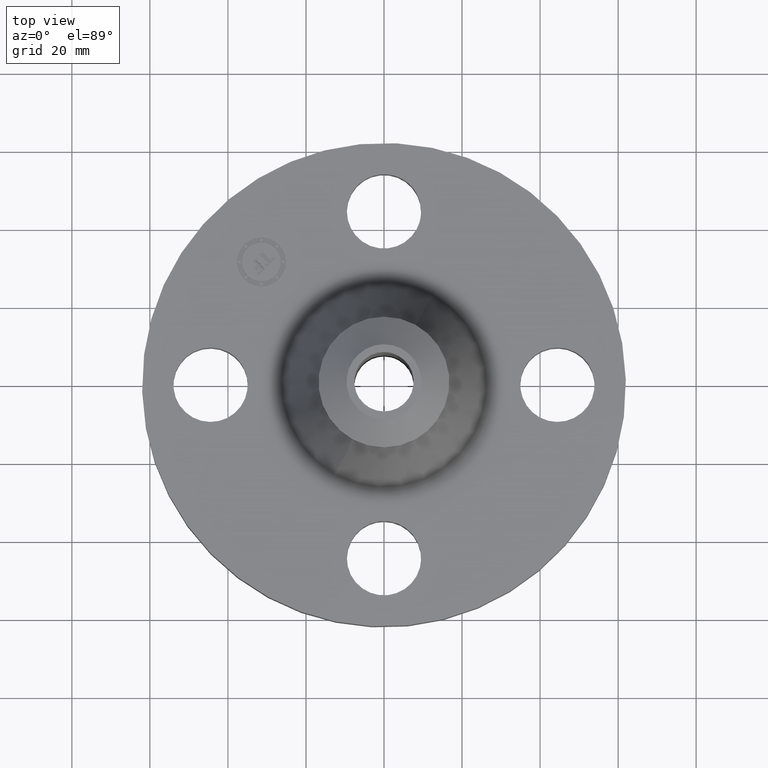
[diagram: clean part render]
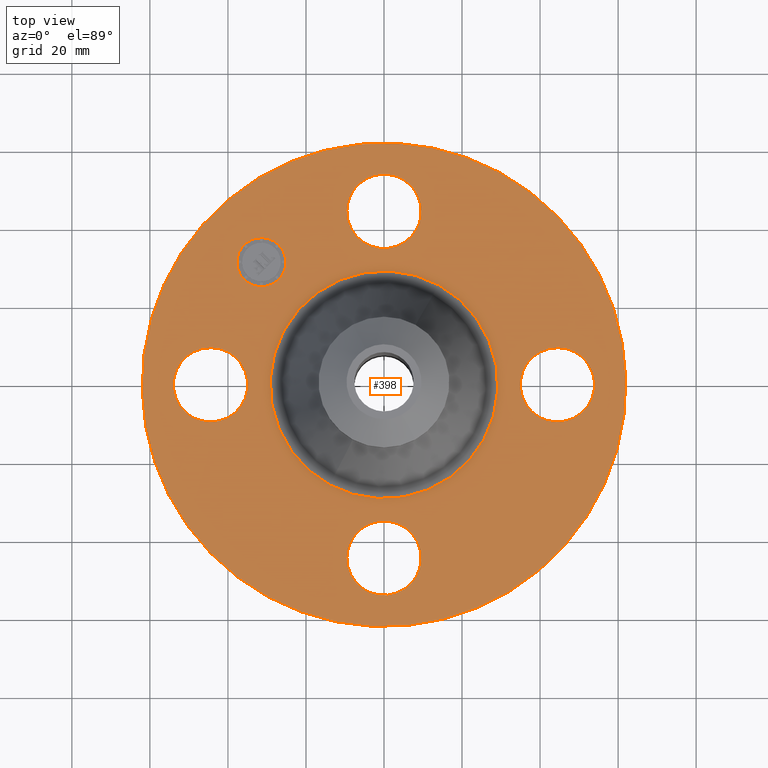
[diagram: same view with one face highlighted and labeled with its STEP entity id]
A machine part, top view. The second image highlights one B-rep face of the part: STEP entity #398.
In plain terms, the highlighted planar face has unit normal (0, 0, -1).
Its self-contained STEP definition (entity closure, byte-faithful):
#114=AXIS2_PLACEMENT_3D('Circle Axis2P3D',#112,#113,$) ;
#284=AXIS2_PLACEMENT_3D('Plane Axis2P3D',#281,#282,#283) ;
#288=AXIS2_PLACEMENT_3D('Circle Axis2P3D',#286,#287,$) ;
#297=AXIS2_PLACEMENT_3D('Circle Axis2P3D',#295,#296,$) ;
#310=AXIS2_PLACEMENT_3D('Circle Axis2P3D',#308,#309,$) ;
#319=AXIS2_PLACEMENT_3D('Circle Axis2P3D',#317,#318,$) ;
#328=AXIS2_PLACEMENT_3D('Circle Axis2P3D',#326,#327,$) ;
#337=AXIS2_PLACEMENT_3D('Circle Axis2P3D',#335,#336,$) ;
#346=AXIS2_PLACEMENT_3D('Circle Axis2P3D',#344,#345,$) ;
#355=AXIS2_PLACEMENT_3D('Circle Axis2P3D',#353,#354,$) ;
#364=AXIS2_PLACEMENT_3D('Circle Axis2P3D',#362,#363,$) ;
#373=AXIS2_PLACEMENT_3D('Circle Axis2P3D',#371,#372,$) ;
#382=AXIS2_PLACEMENT_3D('Circle Axis2P3D',#380,#381,$) ;
#391=AXIS2_PLACEMENT_3D('Circle Axis2P3D',#389,#390,$) ;
#46=CARTESIAN_POINT('Vertex',(-0.32909346071,1.92978457699,0.619999999987)) ;
#60=CARTESIAN_POINT('Vertex',(0.329093460698,1.57021542302,0.620000000002)) ;
#64=CARTESIAN_POINT('Control Point',(-0.32909346071,1.92978457699,0.620000000002)) ;
#65=CARTESIAN_POINT('Control Point',(-0.300852965397,1.98147845691,0.620000000001)) ;
#66=CARTESIAN_POINT('Control Point',(-0.262462400496,2.02762732855,0.620000000001)) ;
#67=CARTESIAN_POINT('Control Point',(-0.215365331668,2.06556492066,0.62)) ;
#68=CARTESIAN_POINT('Control Point',(-0.108833594252,2.12092920725,0.619999999998)) ;
#69=CARTESIAN_POINT('Control Point',(0.0107232234565,2.13190110986,0.619999999997)) ;
#70=CARTESIAN_POINT('Control Point',(0.0708518088381,2.12542438176,0.619999999996)) ;
#71=CARTESIAN_POINT('Control Point',(0.185329585265,2.08924353031,0.619999999995)) ;
#72=CARTESIAN_POINT('Control Point',(0.27762732854,2.01246240051,0.619999999993)) ;
#73=CARTESIAN_POINT('Control Point',(0.315564920645,1.96536533168,0.619999999992)) ;
#74=CARTESIAN_POINT('Control Point',(0.370929207243,1.85883359426,0.619999999991)) ;
#75=CARTESIAN_POINT('Control Point',(0.38190110985,1.73927677655,0.61999999999)) ;
#76=CARTESIAN_POINT('Control Point',(0.375424381748,1.67914819117,0.619999999989)) ;
#77=CARTESIAN_POINT('Control Point',(0.357333956023,1.62190930296,0.619999999988)) ;
#78=CARTESIAN_POINT('Control Point',(0.32909346071,1.57021542303,0.619999999987)) ;
#112=CARTESIAN_POINT('Axis2P3D Location',(0.,1.75000000001,0.619999999987)) ;
#281=CARTESIAN_POINT('Axis2P3D Location',(0.,2.44000000001,0.620000000002)) ;
#286=CARTESIAN_POINT('Axis2P3D Location',(8.39223703654E-016,1.82136720404E-011,0.620000000002)) ;
#290=CARTESIAN_POINT('Vertex',(1.1697983142,2.14130145102,0.620000000025)) ;
#292=CARTESIAN_POINT('Vertex',(-1.1697983142,-2.14130145102,0.620000000025)) ;
#295=CARTESIAN_POINT('Axis2P3D Location',(-8.39223703654E-016,1.82131125579E-011,0.620000000002)) ;
#308=CARTESIAN_POINT('Axis2P3D Location',(3.08530803705E-011,1.35786395251E-012,0.620000000002)) ;
#312=CARTESIAN_POINT('Vertex',(-0.550754553068,-1.00814944707,0.620000000003)) ;
#314=CARTESIAN_POINT('Vertex',(0.55075455307,1.00814944707,0.620000000003)) ;
#317=CARTESIAN_POINT('Axis2P3D Location',(1.39870617276E-016,1.82133922992E-011,0.620000000002)) ;
#326=CARTESIAN_POINT('Axis2P3D Location',(1.74999999999,2.52125179876E-011,0.620000000002)) ;
#330=CARTESIAN_POINT('Vertex',(1.570215423,-0.329093460679,0.620000000002)) ;
#332=CARTESIAN_POINT('Vertex',(1.92978457699,0.32909346071,0.619999999987)) ;
#335=CARTESIAN_POINT('Axis2P3D Location',(1.75000000002,1.12142666107E-011,0.620000000002)) ;
#344=CARTESIAN_POINT('Axis2P3D Location',(-1.74838271595E-017,-1.75000000003,0.620000000002)) ;
#348=CARTESIAN_POINT('Vertex',(-0.329093460698,-1.57021542305,0.620000000002)) ;
#350=CARTESIAN_POINT('Vertex',(0.32909346071,-1.92978457699,0.619999999987)) ;
#353=CARTESIAN_POINT('Axis2P3D Location',(1.74838271595E-017,-1.75000000003,0.620000000002)) ;
#362=CARTESIAN_POINT('Axis2P3D Location',(-1.74999999999,1.12142666107E-011,0.620000000002)) ;
#366=CARTESIAN_POINT('Vertex',(-1.570215423,0.329093460716,0.620000000002)) ;
#368=CARTESIAN_POINT('Vertex',(-1.92978457699,-0.32909346071,0.619999999987)) ;
#371=CARTESIAN_POINT('Axis2P3D Location',(-1.75000000002,2.52125179876E-011,0.620000000002)) ;
#380=CARTESIAN_POINT('Axis2P3D Location',(-1.23743686708,1.23743686702,0.620000000002)) ;
#384=CARTESIAN_POINT('Vertex',(-1.41244579547,1.06242793871,0.620000000002)) ;
#386=CARTESIAN_POINT('Vertex',(-1.06242793876,1.41244579541,0.620000000002)) ;
#389=CARTESIAN_POINT('Axis2P3D Location',(-1.23743686711,1.23743686706,0.620000000002)) ;
#113=DIRECTION('Axis2P3D Direction',(0.,-0.,-0.0393700787402)) ;
#282=DIRECTION('Axis2P3D Direction',(0.,0.,-0.0393700787402)) ;
#283=DIRECTION('Axis2P3D XDirection',(0.0393700787402,0.,0.)) ;
#287=DIRECTION('Axis2P3D Direction',(0.,0.,-0.0393700787402)) ;
#296=DIRECTION('Axis2P3D Direction',(0.,0.,-0.0393700787402)) ;
#309=DIRECTION('Axis2P3D Direction',(0.,0.,-0.0393700787402)) ;
#318=DIRECTION('Axis2P3D Direction',(0.,0.,-0.0393700787402)) ;
#327=DIRECTION('Axis2P3D Direction',(0.,0.,-0.0393700787402)) ;
#336=DIRECTION('Axis2P3D Direction',(0.,0.,-0.0393700787402)) ;
#345=DIRECTION('Axis2P3D Direction',(0.,0.,-0.0393700787402)) ;
#354=DIRECTION('Axis2P3D Direction',(0.,0.,-0.0393700787402)) ;
#363=DIRECTION('Axis2P3D Direction',(0.,0.,-0.0393700787402)) ;
#372=DIRECTION('Axis2P3D Direction',(0.,0.,-0.0393700787402)) ;
#381=DIRECTION('Axis2P3D Direction',(0.,0.,-0.0393700787402)) ;
#390=DIRECTION('Axis2P3D Direction',(0.,0.,-0.0393700787402)) ;
#301=ORIENTED_EDGE('',*,*,#294,.F.) ;
#302=ORIENTED_EDGE('',*,*,#299,.F.) ;
#305=ORIENTED_EDGE('',*,*,#79,.T.) ;
#306=ORIENTED_EDGE('',*,*,#116,.T.) ;
#323=ORIENTED_EDGE('',*,*,#316,.T.) ;
#324=ORIENTED_EDGE('',*,*,#321,.T.) ;
#341=ORIENTED_EDGE('',*,*,#334,.T.) ;
#342=ORIENTED_EDGE('',*,*,#339,.T.) ;
#359=ORIENTED_EDGE('',*,*,#352,.T.) ;
#360=ORIENTED_EDGE('',*,*,#357,.T.) ;
#377=ORIENTED_EDGE('',*,*,#370,.T.) ;
#378=ORIENTED_EDGE('',*,*,#375,.T.) ;
#395=ORIENTED_EDGE('',*,*,#388,.T.) ;
#396=ORIENTED_EDGE('',*,*,#393,.T.) ;
#307=FACE_BOUND('',#304,.T.) ;
#325=FACE_BOUND('',#322,.T.) ;
#343=FACE_BOUND('',#340,.T.) ;
#361=FACE_BOUND('',#358,.T.) ;
#379=FACE_BOUND('',#376,.T.) ;
#397=FACE_BOUND('',#394,.T.) ;
#398=ADVANCED_FACE('PartBody',(#303,#307,#325,#343,#361,#379,#397),#285,.F.) ;
#63=B_SPLINE_CURVE_WITH_KNOTS('',5,(#64,#65,#66,#67,#68,#69,#70,#71,#72,#73,#74,#75,#76,#77,#78),.UNSPECIFIED.,.F.,.U.,(6,3,3,3,6),(-14.9618350128,-7.48091750638,8.881784197E-016,7.48091750638,14.9618350128),.UNSPECIFIED.) ;
#115=CIRCLE('generated circle',#114,0.375000000001) ;
#289=CIRCLE('generated circle',#288,2.44) ;
#298=CIRCLE('generated circle',#297,2.44) ;
#311=CIRCLE('generated circle',#310,1.14878017277) ;
#320=CIRCLE('generated circle',#319,1.14878017277) ;
#329=CIRCLE('generated circle',#328,0.375000000006) ;
#338=CIRCLE('generated circle',#337,0.375000000006) ;
#347=CIRCLE('generated circle',#346,0.374999999988) ;
#356=CIRCLE('generated circle',#355,0.374999999988) ;
#365=CIRCLE('generated circle',#364,0.375000000006) ;
#374=CIRCLE('generated circle',#373,0.375000000006) ;
#383=CIRCLE('generated circle',#382,0.247500000012) ;
#392=CIRCLE('generated circle',#391,0.247500000012) ;
#79=EDGE_CURVE('',#47,#61,#63,.T.) ;
#116=EDGE_CURVE('',#61,#47,#115,.T.) ;
#294=EDGE_CURVE('',#291,#293,#289,.T.) ;
#299=EDGE_CURVE('',#293,#291,#298,.T.) ;
#316=EDGE_CURVE('',#313,#315,#311,.T.) ;
#321=EDGE_CURVE('',#315,#313,#320,.T.) ;
#334=EDGE_CURVE('',#331,#333,#329,.T.) ;
#339=EDGE_CURVE('',#333,#331,#338,.T.) ;
#352=EDGE_CURVE('',#349,#351,#347,.T.) ;
#357=EDGE_CURVE('',#351,#349,#356,.T.) ;
#370=EDGE_CURVE('',#367,#369,#365,.T.) ;
#375=EDGE_CURVE('',#369,#367,#374,.T.) ;
#388=EDGE_CURVE('',#385,#387,#383,.T.) ;
#393=EDGE_CURVE('',#387,#385,#392,.T.) ;
#300=EDGE_LOOP('',(#301,#302)) ;
#304=EDGE_LOOP('',(#305,#306)) ;
#322=EDGE_LOOP('',(#323,#324)) ;
#340=EDGE_LOOP('',(#341,#342)) ;
#358=EDGE_LOOP('',(#359,#360)) ;
#376=EDGE_LOOP('',(#377,#378)) ;
#394=EDGE_LOOP('',(#395,#396)) ;
#303=FACE_OUTER_BOUND('',#300,.T.) ;
#285=PLANE('',#284) ;
#47=VERTEX_POINT('',#46) ;
#61=VERTEX_POINT('',#60) ;
#291=VERTEX_POINT('',#290) ;
#293=VERTEX_POINT('',#292) ;
#313=VERTEX_POINT('',#312) ;
#315=VERTEX_POINT('',#314) ;
#331=VERTEX_POINT('',#330) ;
#333=VERTEX_POINT('',#332) ;
#349=VERTEX_POINT('',#348) ;
#351=VERTEX_POINT('',#350) ;
#367=VERTEX_POINT('',#366) ;
#369=VERTEX_POINT('',#368) ;
#385=VERTEX_POINT('',#384) ;
#387=VERTEX_POINT('',#386) ;